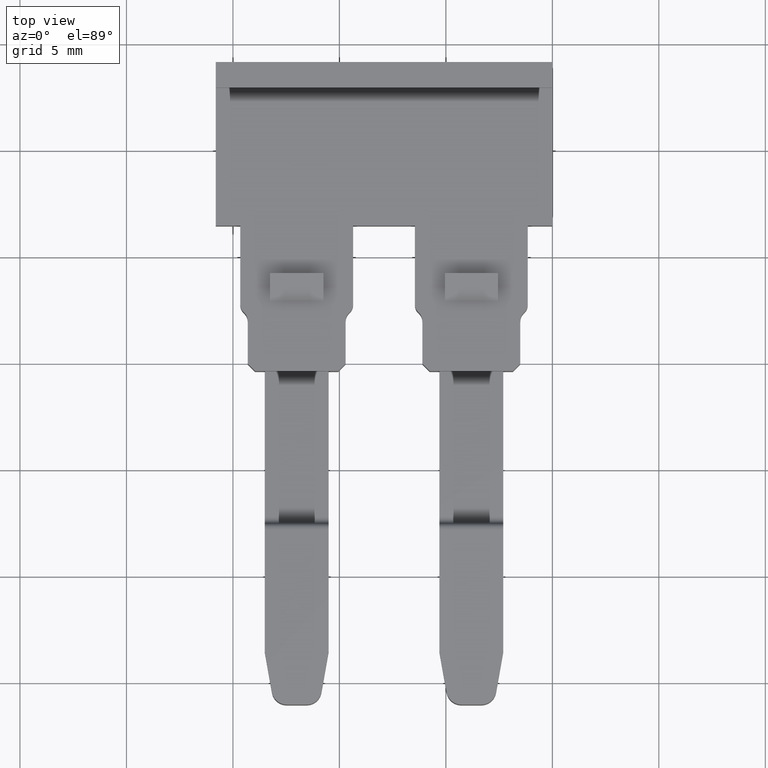
[diagram: clean part render]
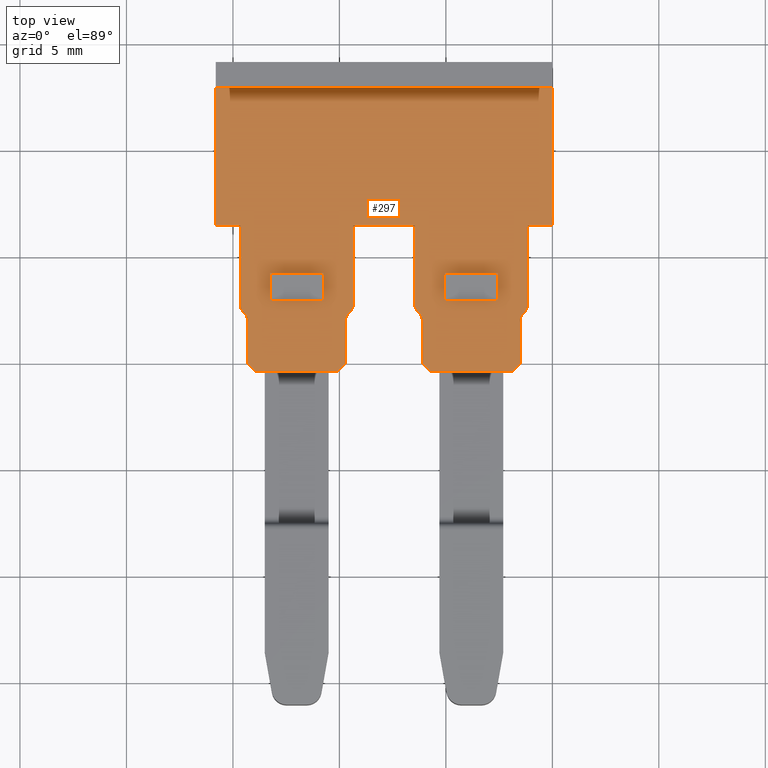
[diagram: same view with one face highlighted and labeled with its STEP entity id]
A machine part, top view. The second image highlights one B-rep face of the part: STEP entity #297.
In plain terms, the highlighted planar face has unit normal (0, 0, 1).
Its self-contained STEP definition (entity closure, byte-faithful):
#2 = EDGE_CURVE ( 'NONE', #2613, #2609, #2706, .T. ) ;
#23 = EDGE_CURVE ( 'NONE', #2654, #2611, #2832, .T. ) ;
#28 = EDGE_CURVE ( 'NONE', #2693, #2644, #2806, .T. ) ;
#29 = EDGE_CURVE ( 'NONE', #2621, #2609, #2826, .T. ) ;
#30 = EDGE_CURVE ( 'NONE', #2660, #2643, #2808, .T. ) ;
#32 = EDGE_CURVE ( 'NONE', #2592, #2621, #1948, .T. ) ;
#36 = EDGE_CURVE ( 'NONE', #2592, #2613, #1951, .T. ) ;
#73 = EDGE_CURVE ( 'NONE', #2670, #2684, #1537, .T. ) ;
#78 = EDGE_CURVE ( 'NONE', #2733, #2647, #633, .T. ) ;
#83 = EDGE_CURVE ( 'NONE', #2756, #2610, #1510, .T. ) ;
#97 = EDGE_CURVE ( 'NONE', #2610, #2670, #727, .T. ) ;
#105 = EDGE_CURVE ( 'NONE', #2746, #2654, #1578, .T. ) ;
#131 = EDGE_CURVE ( 'NONE', #2684, #2745, #841, .T. ) ;
#135 = EDGE_CURVE ( 'NONE', #2642, #2700, #829, .T. ) ;
#147 = EDGE_CURVE ( 'NONE', #2708, #2693, #1670, .T. ) ;
#153 = EDGE_CURVE ( 'NONE', #2643, #2671, #1645, .T. ) ;
#158 = EDGE_CURVE ( 'NONE', #2719, #2659, #877, .T. ) ;
#159 = EDGE_CURVE ( 'NONE', #2611, #2744, #1660, .T. ) ;
#160 = EDGE_CURVE ( 'NONE', #2667, #2736, #943, .T. ) ;
#163 = EDGE_CURVE ( 'NONE', #2662, #2660, #1633, .T. ) ;
#166 = EDGE_CURVE ( 'NONE', #2734, #2710, #931, .T. ) ;
#174 = EDGE_CURVE ( 'NONE', #2698, #2739, #919, .T. ) ;
#175 = EDGE_CURVE ( 'NONE', #2734, #2755, #930, .T. ) ;
#178 = EDGE_CURVE ( 'NONE', #2729, #2717, #952, .T. ) ;
#185 = EDGE_CURVE ( 'NONE', #2745, #2755, #984, .T. ) ;
#186 = EDGE_CURVE ( 'NONE', #2736, #2733, #958, .T. ) ;
#187 = EDGE_CURVE ( 'NONE', #2644, #2695, #1682, .T. ) ;
#193 = EDGE_CURVE ( 'NONE', #2719, #2700, #1037, .T. ) ;
#194 = EDGE_CURVE ( 'NONE', #2698, #2722, #998, .T. ) ;
#195 = EDGE_CURVE ( 'NONE', #2727, #2708, #1013, .T. ) ;
#203 = EDGE_CURVE ( 'NONE', #2717, #2667, #1044, .T. ) ;
#210 = EDGE_CURVE ( 'NONE', #2671, #2721, #1087, .T. ) ;
#213 = EDGE_CURVE ( 'NONE', #2710, #2662, #1080, .T. ) ;
#220 = EDGE_CURVE ( 'NONE', #2659, #2746, #1100, .T. ) ;
#231 = EDGE_CURVE ( 'NONE', #2695, #2642, #1186, .T. ) ;
#234 = EDGE_CURVE ( 'NONE', #2739, #2716, #1149, .T. ) ;
#247 = EDGE_CURVE ( 'NONE', #2721, #2727, #1207, .T. ) ;
#248 = EDGE_CURVE ( 'NONE', #2722, #2716, #1223, .T. ) ;
#253 = EDGE_CURVE ( 'NONE', #2647, #2756, #1199, .T. ) ;
#255 = EDGE_CURVE ( 'NONE', #2744, #2729, #1224, .T. ) ;
#297 = ADVANCED_FACE ( 'NONE', ( #1446, #1444, #387 ), #365, .T. ) ;
#365 = PLANE ( 'NONE',  #1803 ) ;
#380 = DIRECTION ( 'NONE',  ( 0.0000000000000000000, 0.0000000000000000000, 1.000000000000000000 ) ) ;
#381 = CARTESIAN_POINT ( 'NONE',  ( 1145.144468391975100, 662.7578638201010800, 3.000000000000000000 ) ) ;
#387 = FACE_OUTER_BOUND ( 'NONE', #2545, .T. ) ;
#394 = DIRECTION ( 'NONE',  ( 1.000000000000000000, 0.0000000000000000000, -0.0000000000000000000 ) ) ;
#515 = CARTESIAN_POINT ( 'NONE',  ( 1153.698026633855800, 662.3843060446221200, 3.000000000000000000 ) ) ;
#529 = CARTESIAN_POINT ( 'NONE',  ( 1144.244467917465300, 662.9078760720548200, 3.000000000000000000 ) ) ;
#543 = CARTESIAN_POINT ( 'NONE',  ( 1141.744467917465300, 662.9078760720548200, 3.000000000000000400 ) ) ;
#553 = CARTESIAN_POINT ( 'NONE',  ( 1144.244467917465300, 664.2078760720547700, 3.000000000000000000 ) ) ;
#556 = CARTESIAN_POINT ( 'NONE',  ( 1140.490916895879100, 662.3843073119102200, 3.000000000000000000 ) ) ;
#561 = CARTESIAN_POINT ( 'NONE',  ( 1141.744467917465300, 664.2078760720547700, 3.000000000000000000 ) ) ;
#566 = CARTESIAN_POINT ( 'NONE',  ( 1148.894470360060500, 659.9592811886663000, 3.000000000000000400 ) ) ;
#571 = CARTESIAN_POINT ( 'NONE',  ( 1145.440915542681300, 662.3272031070188200, 3.000000000000000000 ) ) ;
#580 = CARTESIAN_POINT ( 'NONE',  ( 1140.344467917465200, 666.4412584401425200, 3.000000000000000400 ) ) ;
#590 = CARTESIAN_POINT ( 'NONE',  ( 1140.548017319408200, 662.3272083212701800, 3.000000000000000000 ) ) ;
#591 = CARTESIAN_POINT ( 'NONE',  ( 1148.894468933274300, 661.9736499820405700, 3.000000000000000000 ) ) ;
#592 = CARTESIAN_POINT ( 'NONE',  ( 1149.244469547574200, 659.6092820011524500, 3.000000000000000000 ) ) ;
#593 = CARTESIAN_POINT ( 'NONE',  ( 1145.294469738309100, 661.9736498846202700, 3.000000000000000000 ) ) ;
#594 = CARTESIAN_POINT ( 'NONE',  ( 1148.748018761588600, 662.3272075669629000, 3.000000000000000000 ) ) ;
#595 = CARTESIAN_POINT ( 'NONE',  ( 1154.994472239529600, 672.9078760720548200, 3.000000000000000000 ) ) ;
#602 = CARTESIAN_POINT ( 'NONE',  ( 1148.690911843030100, 662.3843083557416100, 3.000000000000000000 ) ) ;
#603 = CARTESIAN_POINT ( 'NONE',  ( 1153.494474435155100, 659.9592804752735400, 3.000000000000000400 ) ) ;
#606 = CARTESIAN_POINT ( 'NONE',  ( 1140.694468933274000, 661.9736493991215400, 3.000000000000000000 ) ) ;
#618 = CARTESIAN_POINT ( 'NONE',  ( 1152.444467917465300, 664.2078760720547700, 3.000000000000000400 ) ) ;
#619 = CARTESIAN_POINT ( 'NONE',  ( 1148.544465751977200, 662.7378609136880000, 3.000000000000000000 ) ) ;
#620 = CARTESIAN_POINT ( 'NONE',  ( 1153.640922579462800, 662.3272035023839000, 3.000000000000000000 ) ) ;
#623 = CARTESIAN_POINT ( 'NONE',  ( 1145.498019600217000, 662.3843103491215100, 3.000000000000000000 ) ) ;
#628 = CARTESIAN_POINT ( 'NONE',  ( 1145.644466905616100, 662.7378672810804100, 3.000000000000000000 ) ) ;
#633 = LINE ( 'NONE', #641, #1548 ) ;
#641 = CARTESIAN_POINT ( 'NONE',  ( 1145.144468391975100, 666.4412584401425200, 3.000000000000000000 ) ) ;
#645 = DIRECTION ( 'NONE',  ( 1.000000000000000000, 0.0000000000000000000, -0.0000000000000000000 ) ) ;
#647 = CARTESIAN_POINT ( 'NONE',  ( 1140.194468426628200, 661.9736497164254800, 3.000000000000000000 ) ) ;
#659 = DIRECTION ( 'NONE',  ( -1.000000000000000000, 0.0000000000000000000, 0.0000000000000000000 ) ) ;
#660 = DIRECTION ( 'NONE',  ( -0.0000000000000000000, -0.0000000000000000000, -1.000000000000000000 ) ) ;
#681 = CARTESIAN_POINT ( 'NONE',  ( 1140.844468432835100, 662.7378632849956800, 3.000000000000000000 ) ) ;
#683 = DIRECTION ( 'NONE',  ( -1.000000000000000000, 0.0000000000000000000, 0.0000000000000000000 ) ) ;
#698 = DIRECTION ( 'NONE',  ( 0.0000000000000000000, 0.0000000000000000000, 1.000000000000000000 ) ) ;
#727 = LINE ( 'NONE', #737, #1566 ) ;
#730 = CARTESIAN_POINT ( 'NONE',  ( 1145.294469738309100, 659.9592804752735400, 3.000000000000000400 ) ) ;
#737 = CARTESIAN_POINT ( 'NONE',  ( 1140.490914677786300, 662.3843095299471300, 3.000000000000000000 ) ) ;
#745 = DIRECTION ( 'NONE',  ( -1.000000000000000000, 0.0000000000000000000, 0.0000000000000000000 ) ) ;
#759 = CARTESIAN_POINT ( 'NONE',  ( 1153.994471684214700, 661.9736497164279900, 3.000000000000000000 ) ) ;
#760 = DIRECTION ( 'NONE',  ( -0.0000000000000000000, -0.0000000000000000000, -1.000000000000000000 ) ) ;
#763 = DIRECTION ( 'NONE',  ( 0.7071156533801817900, -0.7070979088815909600, -0.0000000000000000000 ) ) ;
#817 = CARTESIAN_POINT ( 'NONE',  ( 1140.694468933274500, 661.9736497164254800, 3.000000000000000000 ) ) ;
#819 = DIRECTION ( 'NONE',  ( -1.269214834134032900E-006, -0.9999999999991945300, -0.0000000000000000000 ) ) ;
#829 = LINE ( 'NONE', #846, #1576 ) ;
#831 = DIRECTION ( 'NONE',  ( 0.7071067811865474600, -0.7071067811865474600, 0.0000000000000000000 ) ) ;
#841 = LINE ( 'NONE', #817, #1574 ) ;
#846 = CARTESIAN_POINT ( 'NONE',  ( 1148.894471073453100, 659.9592804752735400, 3.000000000000000000 ) ) ;
#863 = CARTESIAN_POINT ( 'NONE',  ( 1149.044463937493400, 662.7378604502047200, 3.000000000000000000 ) ) ;
#865 = CARTESIAN_POINT ( 'NONE',  ( 1145.144468391975100, 662.7378638201009800, 3.000000000000000000 ) ) ;
#866 = DIRECTION ( 'NONE',  ( -1.000000000000000000, 0.0000000000000000000, 0.0000000000000000000 ) ) ;
#875 = DIRECTION ( 'NONE',  ( 0.0000000000000000000, 0.0000000000000000000, 1.000000000000000000 ) ) ;
#877 = LINE ( 'NONE', #945, #1646 ) ;
#890 = DIRECTION ( 'NONE',  ( 0.0000000000000000000, 0.0000000000000000000, 1.000000000000000000 ) ) ;
#892 = DIRECTION ( 'NONE',  ( -1.000000000000000000, -2.220454189456208500E-013, 0.0000000000000000000 ) ) ;
#906 = DIRECTION ( 'NONE',  ( -1.000000000000000000, -0.0000000000000000000, 0.0000000000000000000 ) ) ;
#909 = CARTESIAN_POINT ( 'NONE',  ( 1145.794469738307500, 661.9736505214604000, 3.000000000000000000 ) ) ;
#912 = DIRECTION ( 'NONE',  ( 0.7071067811865474600, 0.7071067811865474600, 0.0000000000000000000 ) ) ;
#919 = LINE ( 'NONE', #985, #1674 ) ;
#920 = CARTESIAN_POINT ( 'NONE',  ( 1153.344472601745100, 662.7378623612644300, 3.000000000000000000 ) ) ;
#924 = DIRECTION ( 'NONE',  ( -0.0000000000000000000, -0.0000000000000000000, -1.000000000000000000 ) ) ;
#930 = LINE ( 'NONE', #991, #1668 ) ;
#931 = LINE ( 'NONE', #940, #1634 ) ;
#933 = DIRECTION ( 'NONE',  ( -1.000000000000000000, 0.0000000000000000000, 0.0000000000000000000 ) ) ;
#934 = DIRECTION ( 'NONE',  ( -1.000000000000000000, 0.0000000000000000000, 0.0000000000000000000 ) ) ;
#936 = CARTESIAN_POINT ( 'NONE',  ( 1145.144468391975100, 672.9078760720548200, 3.000000000000000000 ) ) ;
#940 = CARTESIAN_POINT ( 'NONE',  ( 1144.944471264188000, 659.6092820011524500, 3.000000000000000000 ) ) ;
#943 = LINE ( 'NONE', #936, #1683 ) ;
#945 = CARTESIAN_POINT ( 'NONE',  ( 1153.144475961034000, 659.6092820011524500, 3.000000000000000000 ) ) ;
#946 = DIRECTION ( 'NONE',  ( 0.7071067811865474600, 0.7071067811865474600, 0.0000000000000000000 ) ) ;
#948 = DIRECTION ( 'NONE',  ( 0.0000000000000000000, 0.0000000000000000000, 1.000000000000000000 ) ) ;
#950 = DIRECTION ( 'NONE',  ( 1.000000000000000000, 0.0000000000000000000, -0.0000000000000000000 ) ) ;
#952 = LINE ( 'NONE', #954, #1656 ) ;
#954 = CARTESIAN_POINT ( 'NONE',  ( 1145.144468391975100, 666.4412575163982000, 3.000000000000000000 ) ) ;
#958 = LINE ( 'NONE', #1000, #1629 ) ;
#960 = DIRECTION ( 'NONE',  ( 0.7071067811865474600, -0.7071067811865474600, 0.0000000000000000000 ) ) ;
#970 = DIRECTION ( 'NONE',  ( -1.000000000000000000, 0.0000000000000000000, 0.0000000000000000000 ) ) ;
#981 = CARTESIAN_POINT ( 'NONE',  ( 1140.694466376607100, 659.9592804752735400, 3.000000000000000000 ) ) ;
#984 = LINE ( 'NONE', #981, #1626 ) ;
#985 = CARTESIAN_POINT ( 'NONE',  ( 1152.444467917465300, 664.2078760720547700, 3.000000000000000400 ) ) ;
#986 = DIRECTION ( 'NONE',  ( -1.000000000000000000, -1.259332280444392000E-037, -2.956436511251547900E-061 ) ) ;
#991 = CARTESIAN_POINT ( 'NONE',  ( 1158.234848447492800, 659.6092820011524500, 3.000000000000000000 ) ) ;
#997 = DIRECTION ( 'NONE',  ( -1.000000000000000000, -1.259332280444392000E-037, -2.956436511251547900E-061 ) ) ;
#998 = LINE ( 'NONE', #1010, #1730 ) ;
#1000 = CARTESIAN_POINT ( 'NONE',  ( 1139.194470802330000, 666.4412584401425200, 3.000000000000000000 ) ) ;
#1002 = DIRECTION ( 'NONE',  ( -0.0000000000000000000, -0.0000000000000000000, -1.000000000000000000 ) ) ;
#1003 = DIRECTION ( 'NONE',  ( -1.000000000000000000, 0.0000000000000000000, 0.0000000000000000000 ) ) ;
#1004 = DIRECTION ( 'NONE',  ( -0.0000000000000000000, -1.000000000000000000, -0.0000000000000000000 ) ) ;
#1010 = CARTESIAN_POINT ( 'NONE',  ( 1152.444467917465300, 662.9078760720548200, 3.000000000000000400 ) ) ;
#1013 = LINE ( 'NONE', #1034, #1714 ) ;
#1018 = DIRECTION ( 'NONE',  ( -0.0000000000000000000, -1.000000000000000000, -0.0000000000000000000 ) ) ;
#1022 = CARTESIAN_POINT ( 'NONE',  ( 1158.234848447492800, 659.6092820011524500, 3.000000000000000000 ) ) ;
#1028 = DIRECTION ( 'NONE',  ( -1.853939984963251300E-006, -0.9999999999982813700, -0.0000000000000000000 ) ) ;
#1034 = CARTESIAN_POINT ( 'NONE',  ( 1148.544465770546100, 662.7578673721997100, 3.000000000000000000 ) ) ;
#1035 = CARTESIAN_POINT ( 'NONE',  ( 1148.394466766061700, 661.9736497164254800, 3.000000000000000000 ) ) ;
#1037 = LINE ( 'NONE', #1022, #1658 ) ;
#1044 = LINE ( 'NONE', #1045, #1702 ) ;
#1045 = CARTESIAN_POINT ( 'NONE',  ( 1154.994472239529600, 674.1078760720547500, 3.000000000000000000 ) ) ;
#1058 = CARTESIAN_POINT ( 'NONE',  ( 1145.644466905616100, 662.7578707420599400, 3.000000000000000000 ) ) ;
#1069 = DIRECTION ( 'NONE',  ( 0.0000000000000000000, 1.000000000000000000, -0.0000000000000000000 ) ) ;
#1070 = CARTESIAN_POINT ( 'NONE',  ( 1145.294469738309100, 659.9592804752735400, 3.000000000000000000 ) ) ;
#1077 = DIRECTION ( 'NONE',  ( 0.0000000000000000000, 1.000000000000000000, -0.0000000000000000000 ) ) ;
#1080 = LINE ( 'NONE', #1070, #1690 ) ;
#1087 = LINE ( 'NONE', #1058, #1705 ) ;
#1100 = LINE ( 'NONE', #1103, #1715 ) ;
#1103 = CARTESIAN_POINT ( 'NONE',  ( 1153.494474435155100, 661.9736492477802600, 3.000000000000000000 ) ) ;
#1105 = DIRECTION ( 'NONE',  ( 0.0000000000000000000, 1.000000000000000000, -0.0000000000000000000 ) ) ;
#1137 = DIRECTION ( 'NONE',  ( 0.0000000000000000000, 1.000000000000000000, -0.0000000000000000000 ) ) ;
#1149 = LINE ( 'NONE', #1156, #1706 ) ;
#1156 = CARTESIAN_POINT ( 'NONE',  ( 1149.944467917465300, 662.9078760720548200, 3.000000000000000400 ) ) ;
#1162 = DIRECTION ( 'NONE',  ( 1.062455896942234500E-006, -0.9999999999994355600, -0.0000000000000000000 ) ) ;
#1178 = CARTESIAN_POINT ( 'NONE',  ( 1148.894471073453100, 659.9592804752735400, 3.000000000000000000 ) ) ;
#1179 = DIRECTION ( 'NONE',  ( -0.0000000000000000000, -1.000000000000000000, -0.0000000000000000000 ) ) ;
#1186 = LINE ( 'NONE', #1178, #1727 ) ;
#1199 = LINE ( 'NONE', #1213, #1708 ) ;
#1204 = CARTESIAN_POINT ( 'NONE',  ( 1149.944467917465300, 662.9078760720548200, 3.000000000000000400 ) ) ;
#1205 = CARTESIAN_POINT ( 'NONE',  ( 1152.444467917465300, 662.9078760720548200, 3.000000000000000400 ) ) ;
#1207 = LINE ( 'NONE', #1235, #1701 ) ;
#1213 = CARTESIAN_POINT ( 'NONE',  ( 1140.344467917465200, 666.4412584401425200, 3.000000000000000000 ) ) ;
#1216 = DIRECTION ( 'NONE',  ( 1.000000000000000000, 0.0000000000000000000, -0.0000000000000000000 ) ) ;
#1223 = LINE ( 'NONE', #1205, #1693 ) ;
#1224 = LINE ( 'NONE', #1236, #1699 ) ;
#1231 = DIRECTION ( 'NONE',  ( 0.0000000000000000000, 1.000000000000000000, -0.0000000000000000000 ) ) ;
#1232 = DIRECTION ( 'NONE',  ( -1.000000000000000000, 0.0000000000000000000, 0.0000000000000000000 ) ) ;
#1235 = CARTESIAN_POINT ( 'NONE',  ( 1148.544472599332000, 666.4412584401425200, 3.000000000000000000 ) ) ;
#1236 = CARTESIAN_POINT ( 'NONE',  ( 1153.844475124394400, 666.4412575163982000, 3.000000000000000000 ) ) ;
#1237 = DIRECTION ( 'NONE',  ( -0.0000000000000000000, -1.000000000000000000, -0.0000000000000000000 ) ) ;
#1257 = CARTESIAN_POINT ( 'NONE',  ( 1154.994472239529600, 666.4412575163982000, 3.000000000000000000 ) ) ;
#1323 = CARTESIAN_POINT ( 'NONE',  ( 1153.144475961034000, 659.6092820011524500, 3.000000000000000000 ) ) ;
#1387 = CARTESIAN_POINT ( 'NONE',  ( 1145.644466905616100, 666.4412584401425200, 3.000000000000000400 ) ) ;
#1444 = FACE_BOUND ( 'NONE', #2520, .T. ) ;
#1446 = FACE_BOUND ( 'NONE', #2535, .T. ) ;
#1447 = CARTESIAN_POINT ( 'NONE',  ( 1152.444467917465300, 662.9078760720548200, 3.000000000000000400 ) ) ;
#1461 = VECTOR ( 'NONE', #2833, 1000.000000000000000 ) ;
#1469 = VECTOR ( 'NONE', #1917, 1000.000000000000000 ) ;
#1476 = VECTOR ( 'NONE', #1938, 1000.000000000000000 ) ;
#1483 = VECTOR ( 'NONE', #2838, 1000.000000000000000 ) ;
#1486 = VECTOR ( 'NONE', #2807, 1000.000000000000100 ) ;
#1488 = VECTOR ( 'NONE', #2805, 1000.000000000000000 ) ;
#1501 = VECTOR ( 'NONE', #2786, 1000.000000000000000 ) ;
#1504 = AXIS2_PLACEMENT_3D ( 'NONE', #681, #698, #683 ) ;
#1510 = CIRCLE ( 'NONE', #1504, 0.5000005154178754900 ) ;
#1528 = AXIS2_PLACEMENT_3D ( 'NONE', #647, #660, #659 ) ;
#1537 = CIRCLE ( 'NONE', #1528, 0.5000005066464474600 ) ;
#1548 = VECTOR ( 'NONE', #645, 1000.000000000000000 ) ;
#1566 = VECTOR ( 'NONE', #763, 1000.000000000000000 ) ;
#1574 = VECTOR ( 'NONE', #819, 1000.000000000000100 ) ;
#1576 = VECTOR ( 'NONE', #831, 1000.000000000000100 ) ;
#1578 = CIRCLE ( 'NONE', #1592, 0.4999972490598025800 ) ;
#1592 = AXIS2_PLACEMENT_3D ( 'NONE', #759, #760, #745 ) ;
#1624 = AXIS2_PLACEMENT_3D ( 'NONE', #920, #948, #934 ) ;
#1626 = VECTOR ( 'NONE', #960, 1000.000000000000100 ) ;
#1627 = AXIS2_PLACEMENT_3D ( 'NONE', #863, #890, #892 ) ;
#1629 = VECTOR ( 'NONE', #1018, 1000.000000000000000 ) ;
#1630 = AXIS2_PLACEMENT_3D ( 'NONE', #1035, #1002, #1003 ) ;
#1633 = CIRCLE ( 'NONE', #1677, 0.4999999999999449300 ) ;
#1634 = VECTOR ( 'NONE', #912, 1000.000000000000100 ) ;
#1645 = CIRCLE ( 'NONE', #1659, 0.4999985136888707200 ) ;
#1646 = VECTOR ( 'NONE', #946, 1000.000000000000100 ) ;
#1656 = VECTOR ( 'NONE', #950, 1000.000000000000000 ) ;
#1658 = VECTOR ( 'NONE', #997, 1000.000000000000000 ) ;
#1659 = AXIS2_PLACEMENT_3D ( 'NONE', #865, #875, #866 ) ;
#1660 = CIRCLE ( 'NONE', #1624, 0.5000025226975513000 ) ;
#1668 = VECTOR ( 'NONE', #986, 1000.000000000000000 ) ;
#1670 = CIRCLE ( 'NONE', #1627, 0.4999981669953079700 ) ;
#1674 = VECTOR ( 'NONE', #970, 1000.000000000000000 ) ;
#1677 = AXIS2_PLACEMENT_3D ( 'NONE', #909, #924, #933 ) ;
#1682 = CIRCLE ( 'NONE', #1630, 0.5000021672130206000 ) ;
#1683 = VECTOR ( 'NONE', #906, 1000.000000000000000 ) ;
#1690 = VECTOR ( 'NONE', #1105, 1000.000000000000000 ) ;
#1693 = VECTOR ( 'NONE', #1232, 1000.000000000000000 ) ;
#1699 = VECTOR ( 'NONE', #1231, 1000.000000000000000 ) ;
#1701 = VECTOR ( 'NONE', #1216, 1000.000000000000000 ) ;
#1702 = VECTOR ( 'NONE', #1069, 1000.000000000000000 ) ;
#1705 = VECTOR ( 'NONE', #1077, 1000.000000000000000 ) ;
#1706 = VECTOR ( 'NONE', #1179, 1000.000000000000000 ) ;
#1708 = VECTOR ( 'NONE', #1237, 1000.000000000000000 ) ;
#1714 = VECTOR ( 'NONE', #1028, 1000.000000000000100 ) ;
#1715 = VECTOR ( 'NONE', #1137, 1000.000000000000000 ) ;
#1727 = VECTOR ( 'NONE', #1162, 1000.000000000000100 ) ;
#1730 = VECTOR ( 'NONE', #1004, 1000.000000000000000 ) ;
#1803 = AXIS2_PLACEMENT_3D ( 'NONE', #381, #380, #394 ) ;
#1838 = CARTESIAN_POINT ( 'NONE',  ( 1153.494474435155100, 661.9736494821041800, 3.000000000000000000 ) ) ;
#1844 = CARTESIAN_POINT ( 'NONE',  ( 1144.944471264188000, 659.6092820011524500, 3.000000000000000000 ) ) ;
#1854 = CARTESIAN_POINT ( 'NONE',  ( 1140.344467917441300, 662.7378632849956800, 3.000000000000000000 ) ) ;
#1856 = CARTESIAN_POINT ( 'NONE',  ( 1153.844475124394400, 666.4412575163982000, 3.000000000000000400 ) ) ;
#1871 = CARTESIAN_POINT ( 'NONE',  ( 1148.544472599332000, 666.4412584401425200, 3.000000000000000400 ) ) ;
#1872 = CARTESIAN_POINT ( 'NONE',  ( 1140.694467228829800, 659.9592796230510900, 3.000000000000000400 ) ) ;
#1875 = CARTESIAN_POINT ( 'NONE',  ( 1139.194470802330000, 666.4412584401425200, 3.000000000000000000 ) ) ;
#1876 = CARTESIAN_POINT ( 'NONE',  ( 1141.044464850728200, 659.6092820011524500, 3.000000000000000000 ) ) ;
#1878 = CARTESIAN_POINT ( 'NONE',  ( 1153.844475124394400, 662.7378658222389700, 3.000000000000000000 ) ) ;
#1880 = CARTESIAN_POINT ( 'NONE',  ( 1149.944467917465300, 664.2078760720547700, 3.000000000000000000 ) ) ;
#1886 = CARTESIAN_POINT ( 'NONE',  ( 1139.194470802330000, 672.9078760720548200, 3.000000000000000000 ) ) ;
#1917 = DIRECTION ( 'NONE',  ( -1.000000000000000000, 0.0000000000000000000, 0.0000000000000000000 ) ) ;
#1938 = DIRECTION ( 'NONE',  ( -0.0000000000000000000, -1.000000000000000000, -0.0000000000000000000 ) ) ;
#1946 = CARTESIAN_POINT ( 'NONE',  ( 1144.244467917465300, 664.2078760720547700, 3.000000000000000400 ) ) ;
#1948 = LINE ( 'NONE', #1953, #1476 ) ;
#1951 = LINE ( 'NONE', #1946, #1469 ) ;
#1953 = CARTESIAN_POINT ( 'NONE',  ( 1144.244467917465300, 662.9078760720548200, 3.000000000000000400 ) ) ;
#2243 = ORIENTED_EDGE ( 'NONE', *, *, #234, .F. ) ;
#2267 = ORIENTED_EDGE ( 'NONE', *, *, #160, .T. ) ;
#2270 = ORIENTED_EDGE ( 'NONE', *, *, #166, .T. ) ;
#2274 = ORIENTED_EDGE ( 'NONE', *, *, #2, .F. ) ;
#2277 = ORIENTED_EDGE ( 'NONE', *, *, #195, .T. ) ;
#2278 = ORIENTED_EDGE ( 'NONE', *, *, #231, .T. ) ;
#2279 = ORIENTED_EDGE ( 'NONE', *, *, #186, .T. ) ;
#2280 = ORIENTED_EDGE ( 'NONE', *, *, #78, .T. ) ;
#2281 = ORIENTED_EDGE ( 'NONE', *, *, #105, .T. ) ;
#2284 = ORIENTED_EDGE ( 'NONE', *, *, #83, .T. ) ;
#2285 = ORIENTED_EDGE ( 'NONE', *, *, #174, .F. ) ;
#2286 = ORIENTED_EDGE ( 'NONE', *, *, #253, .T. ) ;
#2289 = ORIENTED_EDGE ( 'NONE', *, *, #158, .T. ) ;
#2291 = ORIENTED_EDGE ( 'NONE', *, *, #255, .T. ) ;
#2293 = ORIENTED_EDGE ( 'NONE', *, *, #36, .F. ) ;
#2294 = ORIENTED_EDGE ( 'NONE', *, *, #248, .T. ) ;
#2295 = ORIENTED_EDGE ( 'NONE', *, *, #193, .F. ) ;
#2296 = ORIENTED_EDGE ( 'NONE', *, *, #203, .T. ) ;
#2299 = ORIENTED_EDGE ( 'NONE', *, *, #153, .T. ) ;
#2300 = ORIENTED_EDGE ( 'NONE', *, *, #163, .T. ) ;
#2301 = ORIENTED_EDGE ( 'NONE', *, *, #147, .T. ) ;
#2302 = ORIENTED_EDGE ( 'NONE', *, *, #28, .T. ) ;
#2303 = ORIENTED_EDGE ( 'NONE', *, *, #97, .T. ) ;
#2304 = ORIENTED_EDGE ( 'NONE', *, *, #220, .T. ) ;
#2305 = ORIENTED_EDGE ( 'NONE', *, *, #159, .T. ) ;
#2306 = ORIENTED_EDGE ( 'NONE', *, *, #73, .T. ) ;
#2308 = ORIENTED_EDGE ( 'NONE', *, *, #247, .T. ) ;
#2309 = ORIENTED_EDGE ( 'NONE', *, *, #213, .T. ) ;
#2310 = ORIENTED_EDGE ( 'NONE', *, *, #185, .T. ) ;
#2311 = ORIENTED_EDGE ( 'NONE', *, *, #23, .T. ) ;
#2313 = ORIENTED_EDGE ( 'NONE', *, *, #187, .T. ) ;
#2314 = ORIENTED_EDGE ( 'NONE', *, *, #131, .T. ) ;
#2318 = ORIENTED_EDGE ( 'NONE', *, *, #178, .T. ) ;
#2319 = ORIENTED_EDGE ( 'NONE', *, *, #29, .T. ) ;
#2323 = ORIENTED_EDGE ( 'NONE', *, *, #175, .F. ) ;
#2325 = ORIENTED_EDGE ( 'NONE', *, *, #194, .T. ) ;
#2326 = ORIENTED_EDGE ( 'NONE', *, *, #30, .T. ) ;
#2327 = ORIENTED_EDGE ( 'NONE', *, *, #210, .T. ) ;
#2328 = ORIENTED_EDGE ( 'NONE', *, *, #32, .T. ) ;
#2329 = ORIENTED_EDGE ( 'NONE', *, *, #135, .T. ) ;
#2520 = EDGE_LOOP ( 'NONE', ( #2325, #2294, #2243, #2285 ) ) ;
#2535 = EDGE_LOOP ( 'NONE', ( #2293, #2328, #2319, #2274 ) ) ;
#2545 = EDGE_LOOP ( 'NONE', ( #2279, #2280, #2286, #2284, #2303, #2306, #2314, #2310, #2323, #2270, #2309, #2300, #2326, #2299, #2327, #2308, #2277, #2301, #2302, #2313, #2278, #2329, #2295, #2289, #2304, #2281, #2311, #2305, #2291, #2318, #2296, #2267 ) ) ;
#2592 = VERTEX_POINT ( 'NONE', #553 ) ;
#2609 = VERTEX_POINT ( 'NONE', #543 ) ;
#2610 = VERTEX_POINT ( 'NONE', #556 ) ;
#2611 = VERTEX_POINT ( 'NONE', #515 ) ;
#2613 = VERTEX_POINT ( 'NONE', #561 ) ;
#2621 = VERTEX_POINT ( 'NONE', #529 ) ;
#2642 = VERTEX_POINT ( 'NONE', #566 ) ;
#2643 = VERTEX_POINT ( 'NONE', #623 ) ;
#2644 = VERTEX_POINT ( 'NONE', #594 ) ;
#2647 = VERTEX_POINT ( 'NONE', #580 ) ;
#2654 = VERTEX_POINT ( 'NONE', #620 ) ;
#2659 = VERTEX_POINT ( 'NONE', #603 ) ;
#2660 = VERTEX_POINT ( 'NONE', #571 ) ;
#2662 = VERTEX_POINT ( 'NONE', #593 ) ;
#2667 = VERTEX_POINT ( 'NONE', #595 ) ;
#2670 = VERTEX_POINT ( 'NONE', #590 ) ;
#2671 = VERTEX_POINT ( 'NONE', #628 ) ;
#2684 = VERTEX_POINT ( 'NONE', #606 ) ;
#2693 = VERTEX_POINT ( 'NONE', #602 ) ;
#2695 = VERTEX_POINT ( 'NONE', #591 ) ;
#2698 = VERTEX_POINT ( 'NONE', #618 ) ;
#2700 = VERTEX_POINT ( 'NONE', #592 ) ;
#2706 = LINE ( 'NONE', #2707, #1501 ) ;
#2707 = CARTESIAN_POINT ( 'NONE',  ( 1141.744467917465300, 662.9078760720548200, 3.000000000000000400 ) ) ;
#2708 = VERTEX_POINT ( 'NONE', #619 ) ;
#2710 = VERTEX_POINT ( 'NONE', #730 ) ;
#2716 = VERTEX_POINT ( 'NONE', #1204 ) ;
#2717 = VERTEX_POINT ( 'NONE', #1257 ) ;
#2719 = VERTEX_POINT ( 'NONE', #1323 ) ;
#2721 = VERTEX_POINT ( 'NONE', #1387 ) ;
#2722 = VERTEX_POINT ( 'NONE', #1447 ) ;
#2727 = VERTEX_POINT ( 'NONE', #1871 ) ;
#2729 = VERTEX_POINT ( 'NONE', #1856 ) ;
#2733 = VERTEX_POINT ( 'NONE', #1875 ) ;
#2734 = VERTEX_POINT ( 'NONE', #1844 ) ;
#2736 = VERTEX_POINT ( 'NONE', #1886 ) ;
#2739 = VERTEX_POINT ( 'NONE', #1880 ) ;
#2744 = VERTEX_POINT ( 'NONE', #1878 ) ;
#2745 = VERTEX_POINT ( 'NONE', #1872 ) ;
#2746 = VERTEX_POINT ( 'NONE', #1838 ) ;
#2755 = VERTEX_POINT ( 'NONE', #1876 ) ;
#2756 = VERTEX_POINT ( 'NONE', #1854 ) ;
#2786 = DIRECTION ( 'NONE',  ( -0.0000000000000000000, -1.000000000000000000, -0.0000000000000000000 ) ) ;
#2805 = DIRECTION ( 'NONE',  ( -1.000000000000000000, 0.0000000000000000000, 0.0000000000000000000 ) ) ;
#2806 = LINE ( 'NONE', #2810, #1486 ) ;
#2807 = DIRECTION ( 'NONE',  ( 0.7071447321500710100, -0.7070688281860574300, -0.0000000000000000000 ) ) ;
#2808 = LINE ( 'NONE', #2817, #1461 ) ;
#2810 = CARTESIAN_POINT ( 'NONE',  ( 1148.748018761588600, 662.3272075669629000, 3.000000000000000000 ) ) ;
#2817 = CARTESIAN_POINT ( 'NONE',  ( 1145.440915542681300, 662.3272031070188200, 3.000000000000000000 ) ) ;
#2826 = LINE ( 'NONE', #2830, #1488 ) ;
#2830 = CARTESIAN_POINT ( 'NONE',  ( 1144.244467917465300, 662.9078760720548200, 3.000000000000000400 ) ) ;
#2832 = LINE ( 'NONE', #2843, #1483 ) ;
#2833 = DIRECTION ( 'NONE',  ( 0.7070870645724811600, 0.7071264972508609600, -0.0000000000000000000 ) ) ;
#2838 = DIRECTION ( 'NONE',  ( 0.7071161435833248600, 0.7070974186658064400, -0.0000000000000000000 ) ) ;
#2843 = CARTESIAN_POINT ( 'NONE',  ( 1153.698028993211400, 662.3843084039157200, 3.000000000000000000 ) ) ;